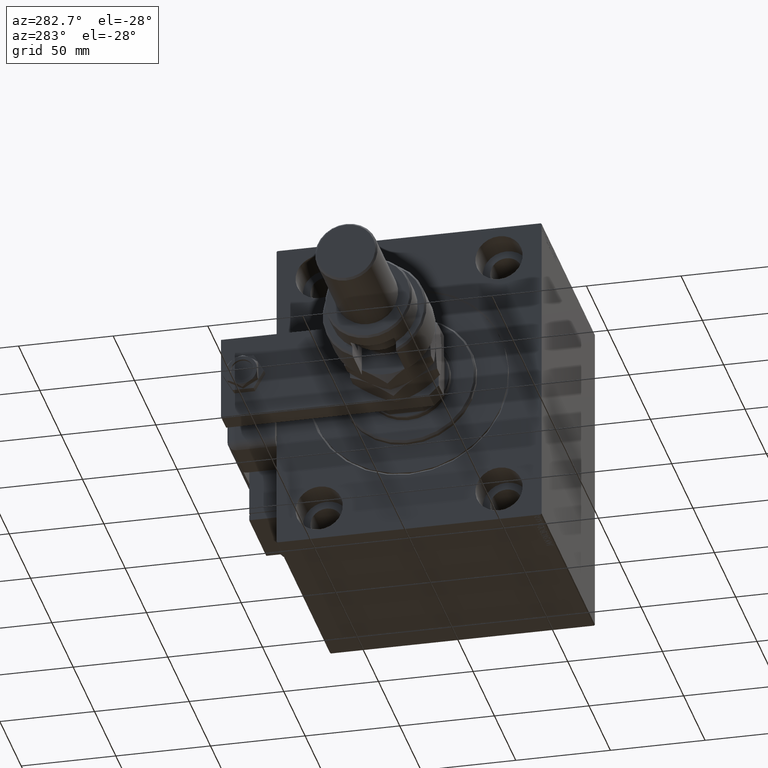
[diagram: clean part render]
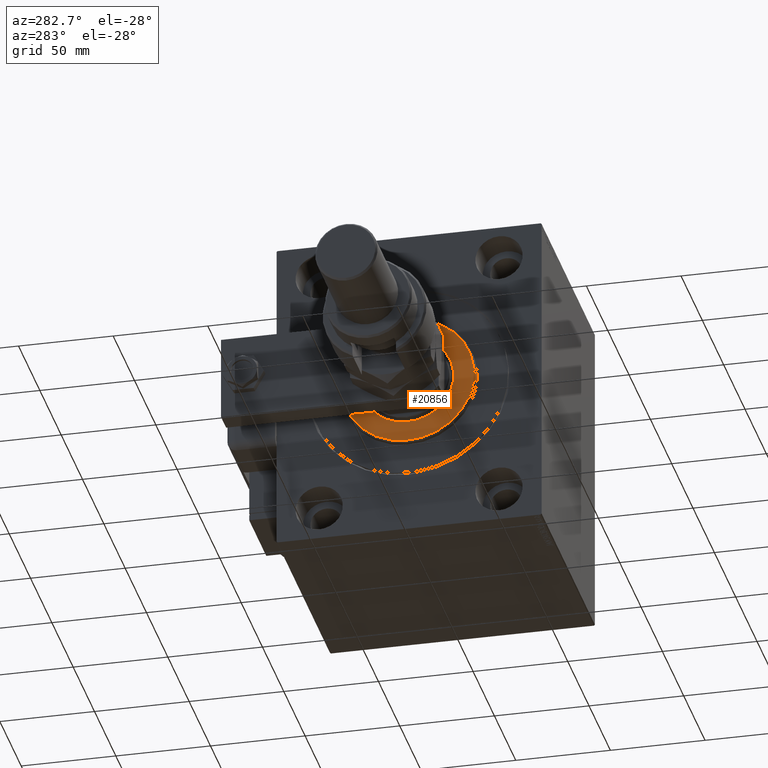
[diagram: same view with one face highlighted and labeled with its STEP entity id]
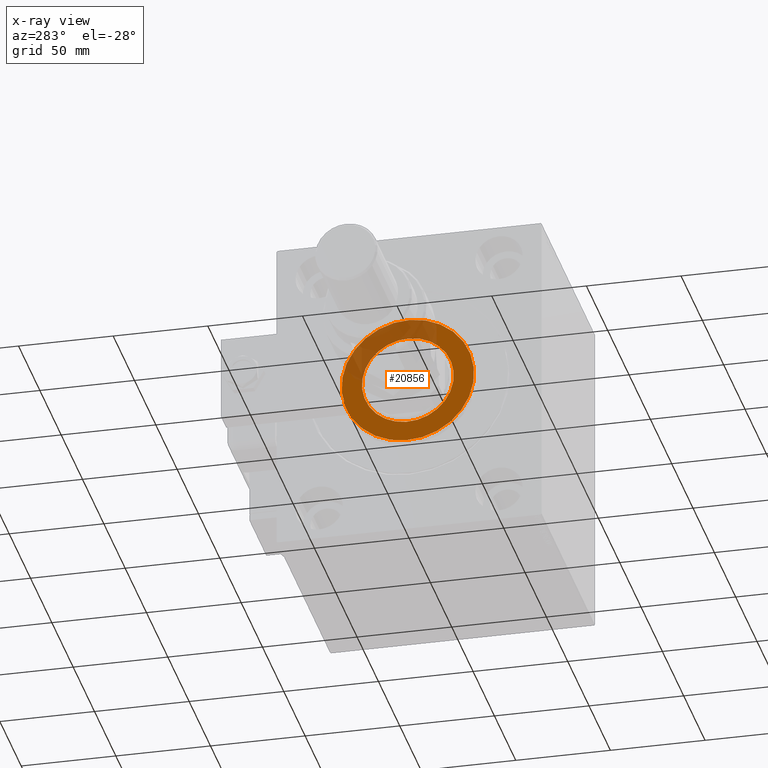
[diagram: x-ray of the same camera — body ghosted, the highlighted face saturated]
A machine part, auxiliary view. The second image highlights one B-rep face of the part: STEP entity #20856.
The next image is the same camera in x-ray: the body ghosted, the highlighted face saturated — about 30% of this face is hidden behind the body in this view.
In plain terms, the highlighted planar face has unit normal (-1, 0, 0).
Its self-contained STEP definition (entity closure, byte-faithful):
#2281 = FACE_BOUND ( 'NONE', #51569, .T. ) ;
#3223 = CARTESIAN_POINT ( 'NONE',  ( 3.000000000000000000, 0.000000000000000000, 0.000000000000000000 ) ) ;
#4142 = EDGE_CURVE ( 'NONE', #45506, #44455, #10977, .T. ) ;
#4365 = CARTESIAN_POINT ( 'NONE',  ( 3.000000000000000000, 0.000000000000000000, 0.000000000000000000 ) ) ;
#7693 = DIRECTION ( 'NONE',  ( 1.000000000000000000, -0.000000000000000000, 0.000000000000000000 ) ) ;
#10374 = CARTESIAN_POINT ( 'NONE',  ( 3.000000000000000000, 0.000000000000000000, 35.00000000000001421 ) ) ;
#10792 = EDGE_CURVE ( 'NONE', #42260, #19110, #16198, .T. ) ;
#10977 = CIRCLE ( 'NONE', #42361, 35.00000000000001421 ) ;
#14631 = DIRECTION ( 'NONE',  ( 1.000000000000000000, -0.000000000000000000, 0.000000000000000000 ) ) ;
#15285 = ORIENTED_EDGE ( 'NONE', *, *, #4142, .T. ) ;
#16198 = CIRCLE ( 'NONE', #28340, 24.25000000000000000 ) ;
#16568 = PLANE ( 'NONE',  #35868 ) ;
#17605 = CIRCLE ( 'NONE', #20614, 24.25000000000000000 ) ;
#18150 = DIRECTION ( 'NONE',  ( 0.000000000000000000, 0.000000000000000000, -1.000000000000000000 ) ) ;
#19110 = VERTEX_POINT ( 'NONE', #34793 ) ;
#19804 = ORIENTED_EDGE ( 'NONE', *, *, #57010, .T. ) ;
#20614 = AXIS2_PLACEMENT_3D ( 'NONE', #36270, #55604, #50859 ) ;
#20856 = ADVANCED_FACE ( 'NONE', ( #50180, #2281 ), #16568, .T. ) ;
#21934 = EDGE_CURVE ( 'NONE', #44455, #45506, #32883, .T. ) ;
#23091 = DIRECTION ( 'NONE',  ( 0.000000000000000000, 0.000000000000000000, -1.000000000000000000 ) ) ;
#25767 = AXIS2_PLACEMENT_3D ( 'NONE', #56823, #14631, #18150 ) ;
#28340 = AXIS2_PLACEMENT_3D ( 'NONE', #4365, #42125, #32919 ) ;
#32883 = CIRCLE ( 'NONE', #25767, 35.00000000000001421 ) ;
#32919 = DIRECTION ( 'NONE',  ( 0.000000000000000000, 0.000000000000000000, -1.000000000000000000 ) ) ;
#34793 = CARTESIAN_POINT ( 'NONE',  ( 3.000000000000000000, 2.969768487932331287E-15, -24.25000000000000000 ) ) ;
#35868 = AXIS2_PLACEMENT_3D ( 'NONE', #3223, #7693, #60967 ) ;
#36270 = CARTESIAN_POINT ( 'NONE',  ( 3.000000000000000000, 0.000000000000000000, 0.000000000000000000 ) ) ;
#39286 = ORIENTED_EDGE ( 'NONE', *, *, #21934, .T. ) ;
#42125 = DIRECTION ( 'NONE',  ( -1.000000000000000000, 0.000000000000000000, -0.000000000000000000 ) ) ;
#42127 = CARTESIAN_POINT ( 'NONE',  ( 3.000000000000000000, 0.000000000000000000, 0.000000000000000000 ) ) ;
#42260 = VERTEX_POINT ( 'NONE', #61600 ) ;
#42361 = AXIS2_PLACEMENT_3D ( 'NONE', #42127, #45949, #23091 ) ;
#44062 = ORIENTED_EDGE ( 'NONE', *, *, #10792, .T. ) ;
#44455 = VERTEX_POINT ( 'NONE', #49270 ) ;
#45506 = VERTEX_POINT ( 'NONE', #10374 ) ;
#45949 = DIRECTION ( 'NONE',  ( 1.000000000000000000, -0.000000000000000000, 0.000000000000000000 ) ) ;
#49270 = CARTESIAN_POINT ( 'NONE',  ( 3.000000000000000000, 4.347496136973104859E-15, -35.00000000000001421 ) ) ;
#50180 = FACE_OUTER_BOUND ( 'NONE', #54009, .T. ) ;
#50859 = DIRECTION ( 'NONE',  ( 0.000000000000000000, 0.000000000000000000, -1.000000000000000000 ) ) ;
#51569 = EDGE_LOOP ( 'NONE', ( #44062, #19804 ) ) ;
#54009 = EDGE_LOOP ( 'NONE', ( #15285, #39286 ) ) ;
#55604 = DIRECTION ( 'NONE',  ( -1.000000000000000000, 0.000000000000000000, -0.000000000000000000 ) ) ;
#56823 = CARTESIAN_POINT ( 'NONE',  ( 3.000000000000000000, 0.000000000000000000, 0.000000000000000000 ) ) ;
#57010 = EDGE_CURVE ( 'NONE', #19110, #42260, #17605, .T. ) ;
#60967 = DIRECTION ( 'NONE',  ( 0.000000000000000000, 0.000000000000000000, -1.000000000000000000 ) ) ;
#61600 = CARTESIAN_POINT ( 'NONE',  ( 3.000000000000000000, 0.000000000000000000, 24.25000000000000000 ) ) ;